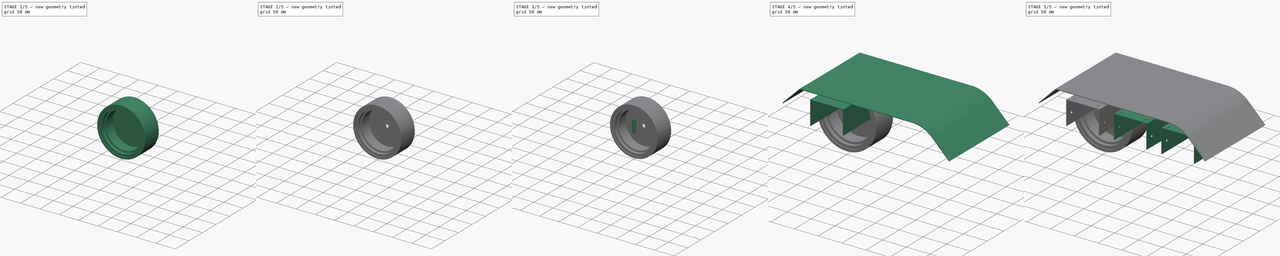
[diagram: build sequence overview — one tinted view per stage of 5, left to right]
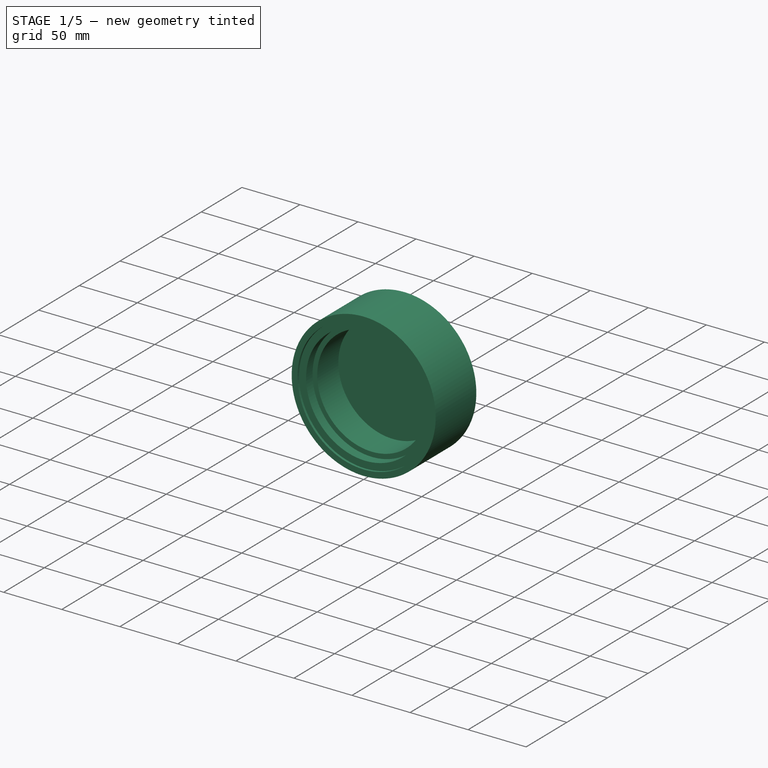
[diagram: stage 1 of 5 — iso view after this stage's code; geometry added in this stage tinted green]
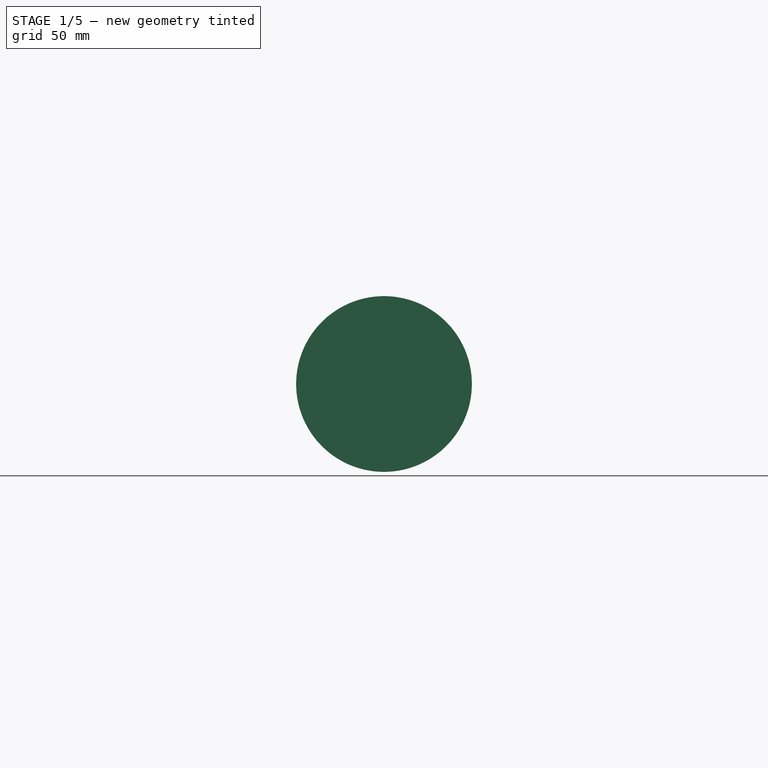
[diagram: stage 1 of 5 — front view after this stage's code; geometry added in this stage tinted green]
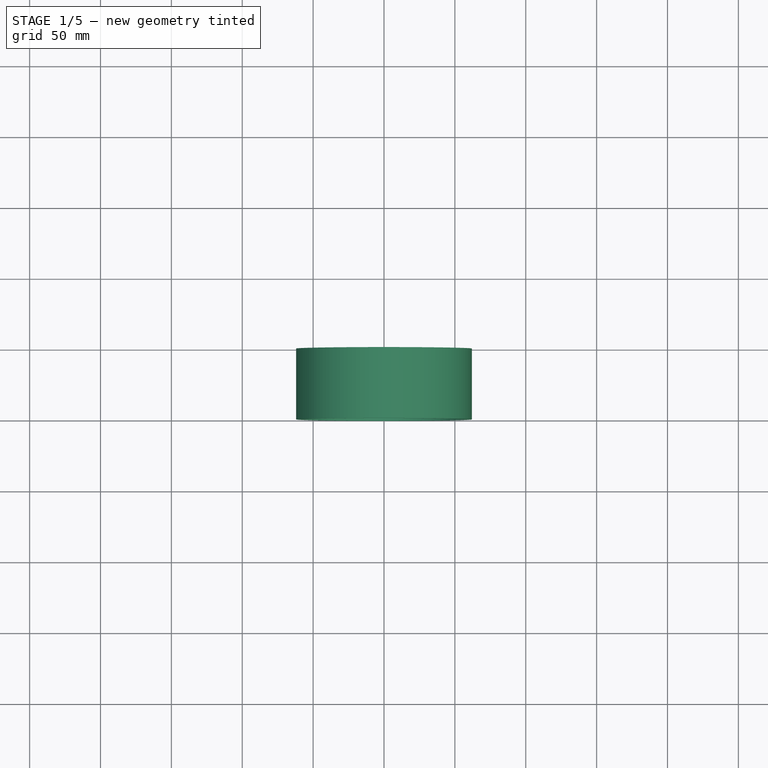
[diagram: stage 1 of 5 — top view after this stage's code; geometry added in this stage tinted green]
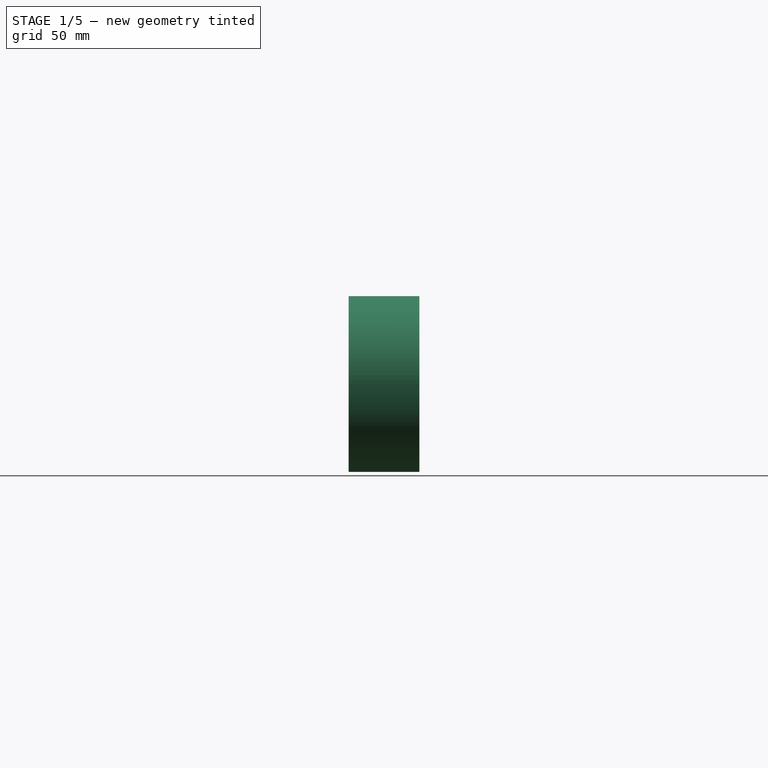
[diagram: stage 1 of 5 — right view after this stage's code; geometry added in this stage tinted green]
FCSTD DOCUMENT  (FreeCAD 0.16R6705 (Git))
Label: ubot
License: All rights reserved
LicenseURL: http://en.wikipedia.org/wiki/All_rights_reserved
objects: Sketcher::SketchObject×18, PartDesign::Pocket×12, App::DocumentObjectGroup×7, Part::Extrusion×6, Part::FeaturePython×5, Part::Fillet×1, Part::MultiFuse×1
note: 55 computed .brp shape members not serialized (recipe doc carries the construction recipe); baked Part::Feature solids carry a one-line shape summary decoded from their .brp

FEATURE [App::DocumentObjectGroup] Group006  label="Stendoff"
  Group = -> [Extrude002,Sketch011,Sketch009,Extrude003,Fusion]
FEATURE [Sketcher::SketchObject] Sketch012
  Placement = pos=(0,0,0) rot=(1,0,0;1.5708rad)
  sketch-geometry (1):
    g0: Circle CenterX=0 CenterY=0 CenterZ=0 NormalX=0 NormalY=0 NormalZ=1 Radius=62
  constraints (2):
    c: Coincident(g0,g-1)
    c: Radius(g0) = 62
FEATURE [App::DocumentObjectGroup] Group007  label="Wheel"
  Group = -> [Sketch012]
FEATURE [App::DocumentObjectGroup] Group003  label="Parts"
  Group = -> [Group001,Group006,Group,Group007]
FEATURE [Part::Extrusion] Extrude005
  Base = -> Sketch012
  Dir = (0,50,0)
  Solid = true
FEATURE [Sketcher::SketchObject] Sketch013
  Placement = pos=(0,0,0) rot=(1,0,0;1.5708rad)
  Support = -> Extrude005 [Face2]
  sketch-geometry (1):
    g0: Circle CenterX=0 CenterY=0 CenterZ=0 NormalX=0 NormalY=0 NormalZ=1 Radius=57
  constraints (2):
    c: Coincident(g0,g-1)
    c: Radius(g0) = 57
FEATURE [PartDesign::Pocket] Pocket003
  Length = 2
  Sketch = -> Sketch013
  Type = 0
FEATURE [Sketcher::SketchObject] Sketch014
  Placement = pos=(0,2,0) rot=(1,0,0;1.5708rad)
  Support = -> Pocket003 [Face5]
  sketch-geometry (1):
    g0: Circle CenterX=0 CenterY=0 CenterZ=0 NormalX=0 NormalY=0 NormalZ=1 Radius=51
  constraints (2):
    c: Coincident(g0,g-1)
    c: Radius(g0) = 51
FEATURE [PartDesign::Pocket] Pocket004
  Length = 8
  Sketch = -> Sketch014
  Type = 0
FEATURE [Sketcher::SketchObject] Sketch015
  Placement = pos=(0,10,0) rot=(1,0,0;1.5708rad)
  Support = -> Pocket004 [Face7]
  sketch-geometry (1):
    g0: Circle CenterX=0 CenterY=0 CenterZ=0 NormalX=0 NormalY=0 NormalZ=1 Radius=47
  constraints (2):
    c: Coincident(g0,g-1)
    c: Radius(g0) = 47
FEATURE [PartDesign::Pocket] Pocket005
  Length = 26
  Sketch = -> Sketch015
  Type = 0
FEATURE [Sketcher::SketchObject] Sketch016
  Placement = pos=(0,50,0) rot=(0,0.707107,0.707107;3.14159rad)
  Support = -> Pocket005 [Face3]
  sketch-geometry (1):
    g0: Circle CenterX=0 CenterY=0 CenterZ=0 NormalX=0 NormalY=0 NormalZ=1 Radius=58
  constraints (2):
    c: Coincident(g0,g-1)
    c: Radius(g0) = 58
FEATURE [PartDesign::Pocket] Pocket006
  Length = 2
  Sketch = -> Sketch016
  Type = 0
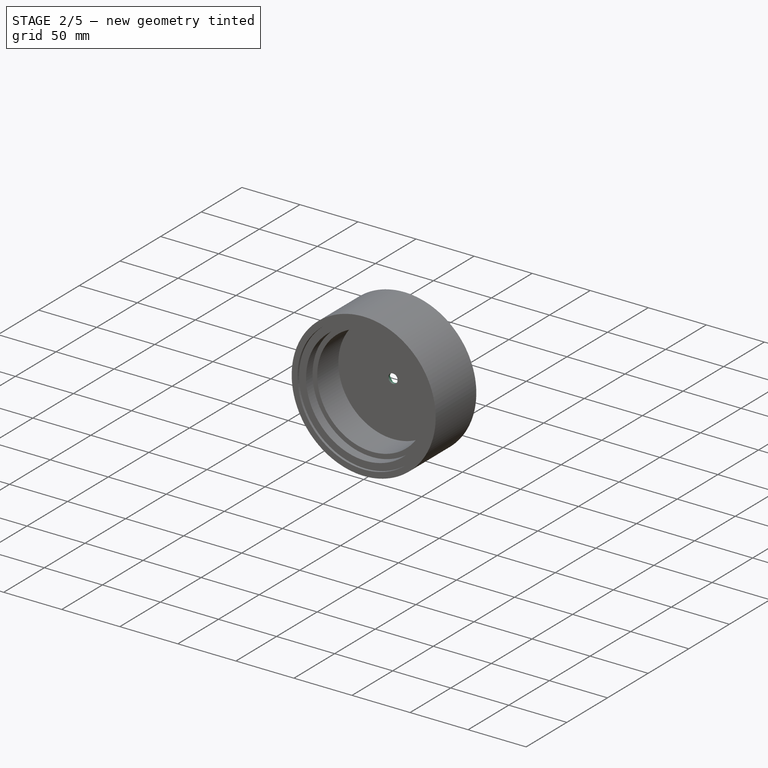
[diagram: stage 2 of 5 — iso view after this stage's code; geometry added in this stage tinted green]
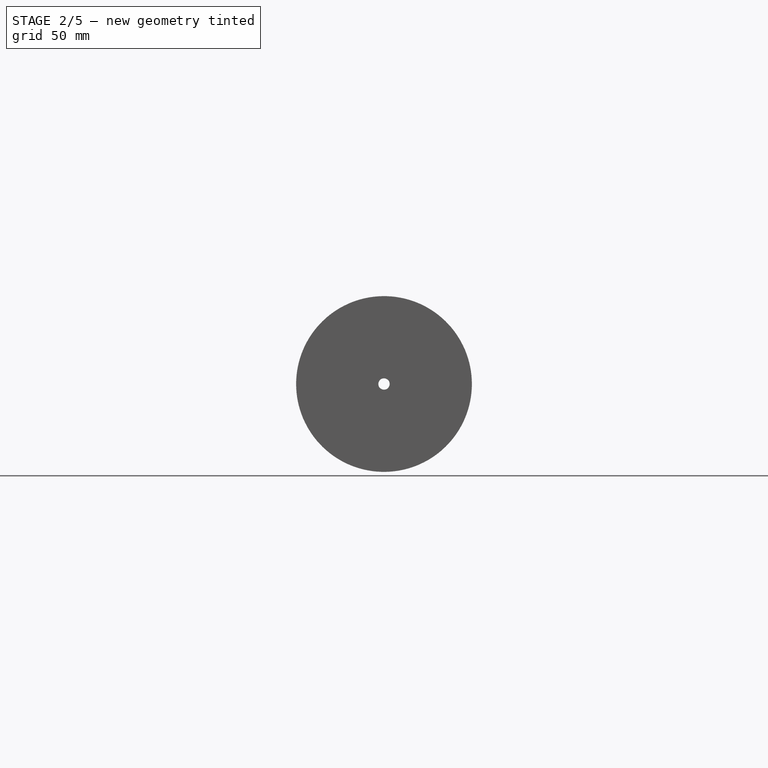
[diagram: stage 2 of 5 — front view after this stage's code; geometry added in this stage tinted green]
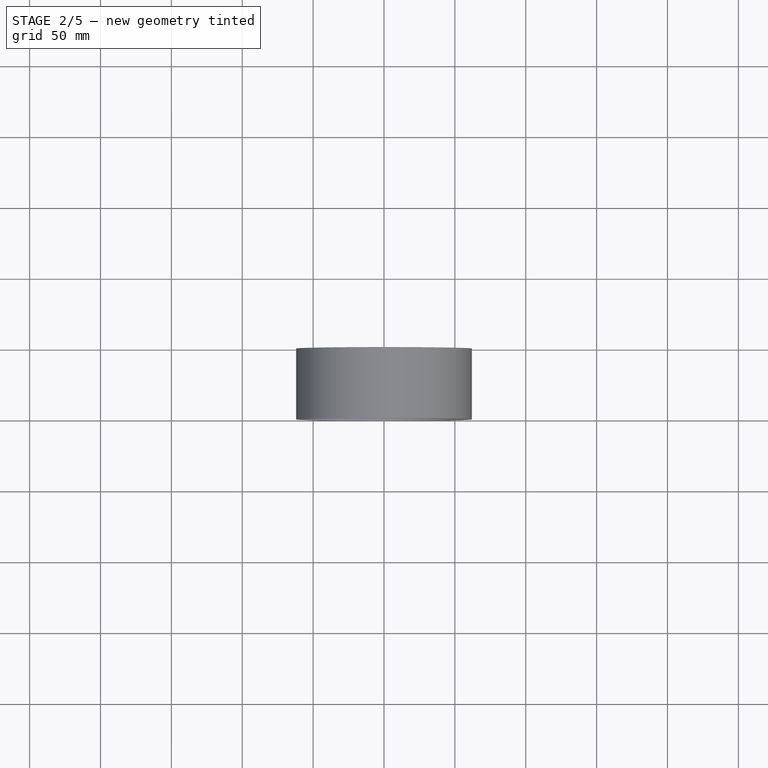
[diagram: stage 2 of 5 — top view after this stage's code; geometry added in this stage tinted green]
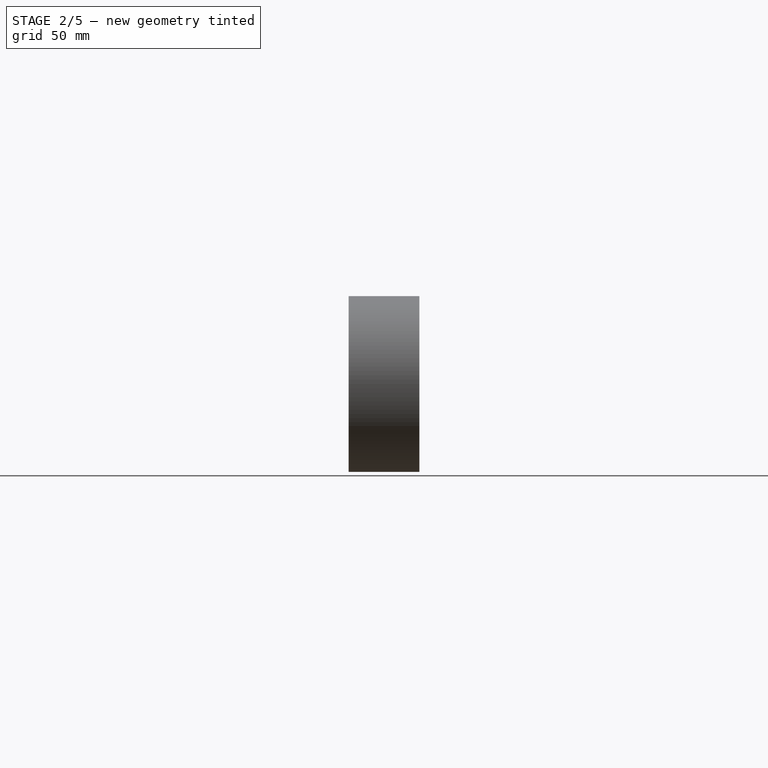
[diagram: stage 2 of 5 — right view after this stage's code; geometry added in this stage tinted green]
FEATURE [Sketcher::SketchObject] Sketch017
  Placement = pos=(0,48,0) rot=(0,0.707107,0.707107;3.14159rad)
  Support = -> Pocket006 [Face7]
  sketch-geometry (1):
    g0: Circle CenterX=0 CenterY=0 CenterZ=0 NormalX=0 NormalY=0 NormalZ=1 Radius=51
  constraints (2):
    c: Coincident(g0,g-1)
    c: Radius(g0) = 51
FEATURE [PartDesign::Pocket] Pocket007
  Length = 2
  Sketch = -> Sketch017
  Type = 0
FEATURE [Sketcher::SketchObject] Sketch019
  Placement = pos=(0,46,0) rot=(0,0.707107,0.707107;3.14159rad)
  Support = -> Pocket007 [Face11]
  sketch-geometry (29):
    g0: LineSegment [constr] StartX=0.353553 StartY=-0.353553 StartZ=0 EndX=-0.353553 EndY=-0.353553 EndZ=0
    g1: LineSegment [constr] StartX=-0.353553 StartY=-0.353553 StartZ=0 EndX=-0.353553 EndY=0.353553 EndZ=0
    g2: LineSegment [constr] StartX=-0.353553 StartY=0.353553 StartZ=0 EndX=0.353553 EndY=0.353553 EndZ=0
    g3: LineSegment [constr] StartX=0.353553 StartY=0.353553 StartZ=0 EndX=0.353553 EndY=-0.353553 EndZ=0
    g4: LineSegment [constr] StartX=0 StartY=0 StartZ=0 EndX=-0.353553 EndY=-0.353553 EndZ=0
    g5: ArcOfCircle CenterX=-0.353553 CenterY=-0.353553 CenterZ=0 NormalX=0 NormalY=0 NormalZ=1 Radius=51 StartAngle=0.0138653 EndAngle=1.55693
    g6: ArcOfCircle CenterX=0.353553 CenterY=-0.353553 CenterZ=0 NormalX=0 NormalY=0 NormalZ=1 Radius=24 StartAngle=4.71239 EndAngle=6.28319
    g7: ArcOfCircle CenterX=0.353553 CenterY=-0.353553 CenterZ=0 NormalX=0 NormalY=0 NormalZ=1 Radius=51 StartAngle=4.71239 EndAngle=6.28319
    g8: LineSegment [constr] StartX=0.353553 StartY=-0.353553 StartZ=0 EndX=24.3536 EndY=-0.353553 EndZ=0
    g9: LineSegment [constr] StartX=0.353553 StartY=-0.353553 StartZ=0 EndX=0.353553 EndY=-24.3536 EndZ=0
    g10: LineSegment StartX=24.3536 StartY=-0.353553 StartZ=0 EndX=51.3536 EndY=-0.353553 EndZ=0
    g11: LineSegment StartX=0.353553 StartY=-24.3536 StartZ=0 EndX=0.353553 EndY=-51.3536 EndZ=0
    g12: ArcOfCircle CenterX=0.353553 CenterY=0.353553 CenterZ=0 NormalX=0 NormalY=0 NormalZ=1 Radius=24 StartAngle=0 EndAngle=1.5708
    g13: LineSegment [constr] StartX=0.353553 StartY=0.353553 StartZ=0 EndX=0.353553 EndY=24.3536 EndZ=0
    g14: LineSegment StartX=0.353553 StartY=24.3536 StartZ=0 EndX=0.353553 EndY=50.6415 EndZ=0
    g15: LineSegment [constr] StartX=0.353553 StartY=0.353553 StartZ=0 EndX=24.3536 EndY=0.353553 EndZ=0
    g16: LineSegment StartX=24.3536 StartY=0.353553 StartZ=0 EndX=50.6415 EndY=0.353553 EndZ=0
    g17: ArcOfCircle CenterX=-0.353553 CenterY=-0.353553 CenterZ=0 NormalX=0 NormalY=0 NormalZ=1 Radius=24 StartAngle=3.14159 EndAngle=4.71239
    g18: ArcOfCircle CenterX=-0.353553 CenterY=-0.353553 CenterZ=0 NormalX=0 NormalY=0 NormalZ=1 Radius=51 StartAngle=3.14159 EndAngle=4.71239
    g19: ArcOfCircle CenterX=-0.353553 CenterY=0.353553 CenterZ=0 NormalX=0 NormalY=0 NormalZ=1 Radius=24 StartAngle=1.5708 EndAngle=3.14159
    g20: ArcOfCircle CenterX=-0.353553 CenterY=0.353553 CenterZ=0 NormalX=0 NormalY=0 NormalZ=1 Radius=51 StartAngle=1.5708 EndAngle=3.14159
    g21: LineSegment [constr] StartX=-0.353553 StartY=-0.353553 StartZ=0 EndX=-0.353553 EndY=-24.3536 EndZ=0
    g22: LineSegment [constr] StartX=-0.353553 StartY=-0.353553 StartZ=0 EndX=-24.3536 EndY=-0.353553 EndZ=0
    g23: LineSegment [constr] StartX=-0.353553 StartY=0.353553 StartZ=0 EndX=-24.3536 EndY=0.353553 EndZ=0
    g24: LineSegment StartX=-24.3536 StartY=-0.353553 StartZ=0 EndX=-51.3536 EndY=-0.353553 EndZ=0
    g25: LineSegment StartX=-24.3536 StartY=0.353553 StartZ=0 EndX=-51.3536 EndY=0.353553 EndZ=0
    g26: LineSegment StartX=-0.353553 StartY=-24.3536 StartZ=0 EndX=-0.353553 EndY=-51.3536 EndZ=0
    g27: LineSegment StartX=-0.353553 StartY=24.3536 StartZ=0 EndX=-0.353553 EndY=51.3536 EndZ=0
    g28: LineSegment [constr] StartX=-0.353553 StartY=0.353553 StartZ=0 EndX=-0.353553 EndY=24.3536 EndZ=0
  constraints (78):
    c: Coincident(g0,g1)
    c: Coincident(g1,g2)
    c: Coincident(g2,g3)
    c: Coincident(g3,g0)
    c: Horizontal(g2)
    c: Vertical(g3)
    c: Equal(g1,g0)
    c: Equal(g0,g2)
    c: Equal(g2,g3)
    c: Symmetric(g0,g0,g-2)
    c: Symmetric(g1,g0,g-1)
    c: Coincident(g4,g-1)
    c: Coincident(g4,g0)
    c: Distance(g4) = 0.5
    c: Coincident(g5,g0)
    c: Radius(g5) = 51
    c: Coincident(g6,g0)
    c: Coincident(g7,g0)
    c: Coincident(g8,g0)
    c: Coincident(g8,g6)
    c: Coincident(g9,g0)
    c: Coincident(g9,g6)
    c: Vertical(g9)
    c: Horizontal(g8)
    c: Radius(g6) = 24
    c: Coincident(g10,g6)
    c: Coincident(g10,g7)
    c: Horizontal(g10)
    c: Coincident(g11,g6)
    c: Coincident(g11,g7)
    c: Vertical(g11)
    c: Radius(g7) = 51
    c: Coincident(g12,g2)
    c: Radius(g12) = 24
    c: Coincident(g13,g2)
    c: Coincident(g13,g12)
    c: Vertical(g13)
    c: Coincident(g14,g12)
    c: Coincident(g14,g5)
    c: Vertical(g14)
    c: Coincident(g15,g2)
    c: Coincident(g15,g12)
    c: Coincident(g16,g12)
    c: Coincident(g16,g5)
    c: Horizontal(g16)
    c: Horizontal(g15)
    c: Coincident(g17,g0)
    c: Coincident(g18,g0)
    c: Coincident(g19,g1)
    c: Coincident(g20,g1)
    c: Radius(g17) = 24
    c: Radius(g19) = 24
    c: Coincident(g21,g0)
    c: Coincident(g21,g17)
    c: Vertical(g21)
    c: Coincident(g22,g0)
    c: Coincident(g22,g17)
    c: Horizontal(g22)
    c: Coincident(g23,g1)
    c: Coincident(g23,g19)
    c: Horizontal(g23)
    c: Coincident(g24,g17)
    c: Coincident(g24,g18)
    c: Horizontal(g24)
    c: Coincident(g25,g19)
    c: Coincident(g25,g20)
    c: Horizontal(g25)
    c: Coincident(g26,g17)
    c: Coincident(g26,g18)
    c: Vertical(g26)
    c: Coincident(g27,g19)
    c: Coincident(g27,g20)
    c: Vertical(g27)
    c: Radius(g20) = 51
    c: Coincident(g28,g1)
    c: Coincident(g28,g19)
    c: Vertical(g28)
    c: Radius(g18) = 51
FEATURE [PartDesign::Pocket] Pocket008
  Length = 9
  Sketch = -> Sketch019
  Type = 0
FEATURE [Sketcher::SketchObject] Sketch020
  ExternalGeometry = -> [Pocket008]
  Placement = pos=(0,46,0) rot=(0,0.707107,0.707107;3.14159rad)
  Support = -> Pocket008 [Face11]
  sketch-geometry (28):
    g0: LineSegment StartX=-24.3536 StartY=0.353553 StartZ=0 EndX=-17.3535 EndY=0.353553 EndZ=0
    g1: LineSegment StartX=-0.353553 StartY=17.3536 StartZ=0 EndX=-0.353553 EndY=24.3536 EndZ=0
    g2: LineSegment StartX=-0.353553 StartY=24.3536 StartZ=0 EndX=-24.3536 EndY=24.3536 EndZ=0
    g3: LineSegment StartX=-24.3536 StartY=24.3536 StartZ=0 EndX=-24.3536 EndY=0.353553 EndZ=0
    g4: LineSegment StartX=24.3536 StartY=0.353553 StartZ=0 EndX=17.3536 EndY=0.353553 EndZ=0
    g5: LineSegment StartX=0.353553 StartY=17.3536 StartZ=0 EndX=0.353553 EndY=24.3536 EndZ=0
    g6: LineSegment StartX=0.353553 StartY=24.3536 StartZ=0 EndX=24.3536 EndY=24.3536 EndZ=0
    g7: LineSegment StartX=24.3536 StartY=24.3536 StartZ=0 EndX=24.3536 EndY=0.353553 EndZ=0
    g8: LineSegment StartX=-0.353553 StartY=-24.3536 StartZ=0 EndX=-24.3536 EndY=-24.3536 EndZ=0
    g9: LineSegment StartX=-24.3536 StartY=-24.3536 StartZ=0 EndX=-24.3536 EndY=-0.353553 EndZ=0
    g10: LineSegment StartX=-24.3536 StartY=-0.353553 StartZ=0 EndX=-17.3535 EndY=-0.353553 EndZ=0
    g11: LineSegment StartX=-0.353553 StartY=-17.3536 StartZ=0 EndX=-0.353553 EndY=-24.3536 EndZ=0
    g12: LineSegment StartX=0.353553 StartY=-24.3536 StartZ=0 EndX=24.3536 EndY=-24.3536 EndZ=0
    g13: LineSegment StartX=24.3536 StartY=-24.3536 StartZ=0 EndX=24.3536 EndY=-0.353553 EndZ=0
    g14: LineSegment StartX=24.3536 StartY=-0.353553 StartZ=0 EndX=17.3536 EndY=-0.353553 EndZ=0
    g15: LineSegment StartX=0.353553 StartY=-17.3536 StartZ=0 EndX=0.353553 EndY=-24.3536 EndZ=0
    g16: ArcOfCircle CenterX=-0.35351 CenterY=0.353553 CenterZ=0 NormalX=0 NormalY=0 NormalZ=1 Radius=17 StartAngle=1.5708 EndAngle=3.14159
    g17: ArcOfCircle CenterX=0.353553 CenterY=0.353553 CenterZ=0 NormalX=0 NormalY=0 NormalZ=1 Radius=17 StartAngle=0 EndAngle=1.5708
    g18: ArcOfCircle CenterX=0.353553 CenterY=-0.353553 CenterZ=0 NormalX=0 NormalY=0 NormalZ=1 Radius=17 StartAngle=4.71239 EndAngle=6.28319
    g19: ArcOfCircle CenterX=-0.35351 CenterY=-0.353553 CenterZ=0 NormalX=0 NormalY=0 NormalZ=1 Radius=17 StartAngle=3.14159 EndAngle=4.71239
    g20: LineSegment [constr] StartX=-17.3535 StartY=0.353553 StartZ=0 EndX=-0.353553 EndY=17.3536 EndZ=0
    g21: LineSegment [constr] StartX=0.353553 StartY=17.3536 StartZ=0 EndX=17.3536 EndY=0.353553 EndZ=0
    g22: LineSegment [constr] StartX=17.3536 StartY=-0.353553 StartZ=0 EndX=0.353553 EndY=-17.3536 EndZ=0
    g23: LineSegment [constr] StartX=-0.353553 StartY=-17.3536 StartZ=0 EndX=-17.3535 EndY=-0.353553 EndZ=0
    g24: LineSegment [constr] StartX=-0.353553 StartY=17.3536 StartZ=0 EndX=0.353553 EndY=17.3536 EndZ=0
    g25: LineSegment [constr] StartX=-0.353553 StartY=-17.3536 StartZ=0 EndX=0.353553 EndY=-17.3536 EndZ=0
    g26: LineSegment [constr] StartX=17.3536 StartY=0.353553 StartZ=0 EndX=17.3536 EndY=-0.353553 EndZ=0
    g27: LineSegment [constr] StartX=-17.3535 StartY=-0.353553 StartZ=0 EndX=-17.3535 EndY=0.353553 EndZ=0
  constraints (71):
    c: Coincident(g1,g2)
    c: Coincident(g2,g3)
    c: Coincident(g3,g0)
    c: Horizontal(g0)
    c: Horizontal(g2)
    c: Vertical(g1)
    c: Vertical(g3)
    c: Coincident(g0,g-3)
    c: Coincident(g1,g-10)
    c: Coincident(g5,g6)
    c: Coincident(g6,g7)
    c: Coincident(g7,g4)
    c: Horizontal(g4)
    c: Horizontal(g6)
    c: Vertical(g5)
    c: Vertical(g7)
    c: Coincident(g4,g-8)
    c: Coincident(g5,g-9)
    c: Coincident(g8,g9)
    c: Coincident(g9,g10)
    c: Coincident(g11,g8)
    c: Horizontal(g8)
    c: Horizontal(g10)
    c: Vertical(g9)
    c: Vertical(g11)
    c: Coincident(g8,g-5)
    c: Coincident(g9,g-4)
    c: Coincident(g12,g13)
    c: Coincident(g13,g14)
    c: Coincident(g15,g12)
    c: Horizontal(g12)
    c: Horizontal(g14)
    c: Vertical(g13)
    c: Vertical(g15)
    c: Coincident(g12,g-6)
    c: Coincident(g13,g-7)
    c: PointOnObject(g16,g1)
    c: PointOnObject(g21,g5)
    c: PointOnObject(g21,g4)
    c: PointOnObject(g22,g15)
    c: PointOnObject(g22,g14)
    c: PointOnObject(g23,g11)
    c: PointOnObject(g19,g10)
    c: Radius(g19) = 17
    c: Radius(g18) = 17
    c: Radius(g17) = 17
    c: Radius(g16) = 17
    c: Coincident(g0,g16)
    c: Coincident(g20,g0)
    c: Coincident(g20,g16)
    c: Coincident(g23,g19)
    c: Distance(g20) = 24.0416
    c: Coincident(g24,g16)
    c: Coincident(g24,g21)
    c: Horizontal(g24)
    c: Coincident(g25,g23)
    c: Coincident(g25,g22)
    c: Horizontal(g25)
    c: Coincident(g26,g21)
    c: Coincident(g26,g22)
    c: Vertical(g26)
    c: Coincident(g27,g19)
    c: Coincident(g27,g0)
    c: Vertical(g27)
    c: PointOnObject(g10,g23)
    c: Coincident(g11,g19)
    c: Coincident(g15,g18)
    c: Coincident(g14,g18)
    c: Coincident(g4,g17)
    c: Coincident(g5,g17)
    c: PointOnObject(g1,g24)
FEATURE [PartDesign::Pocket] Pocket009
  Length = 5
  Sketch = -> Sketch020
  Type = 0
FEATURE [Sketcher::SketchObject] Sketch021
  Placement = pos=(0,46,0) rot=(0,0.707107,0.707107;3.14159rad)
  Support = -> Pocket009 [Face11]
  sketch-geometry (7):
    g0: LineSegment StartX=6 StartY=-10.3923 StartZ=0 EndX=12 EndY=0 EndZ=0
    g1: LineSegment StartX=12 StartY=0 StartZ=0 EndX=6 EndY=10.3923 EndZ=0
    g2: LineSegment StartX=6 StartY=10.3923 StartZ=0 EndX=-6 EndY=10.3923 EndZ=0
    g3: LineSegment StartX=-6 StartY=10.3923 StartZ=0 EndX=-12 EndY=0 EndZ=0
    g4: LineSegment StartX=-12 StartY=0 StartZ=0 EndX=-6 EndY=-10.3923 EndZ=0
    g5: LineSegment StartX=-6 StartY=-10.3923 StartZ=0 EndX=6 EndY=-10.3923 EndZ=0
    g6: Circle [constr] CenterX=0 CenterY=0 CenterZ=0 NormalX=0 NormalY=0 NormalZ=1 Radius=12
  constraints (16):
    c: Coincident(g0,g1)
    c: Coincident(g1,g2)
    c: Coincident(g2,g3)
    c: Coincident(g3,g4)
    c: Coincident(g4,g5)
    c: Coincident(g5,g0)
    c: Equal(g0, g1-g5) x5
    c: PointOnObject(g0,g6)
    c: PointOnObject(g1,g6)
    c: PointOnObject(g2,g6)
    c: PointOnObject(g3,g6)
    c: PointOnObject(g4,g6)
    c: PointOnObject(g5,g6)
    c: Coincident(g6,g-1)
    c: Horizontal(g5)
    c: Radius(g6) = 12
FEATURE [PartDesign::Pocket] Pocket010
  Length = 8
  Sketch = -> Sketch021
  Type = 0
FEATURE [Sketcher::SketchObject] Sketch022
  Placement = pos=(0,38,0) rot=(0,0.707107,0.707107;3.14159rad)
  Support = -> Pocket010 [Face56]
  sketch-geometry (1):
    g0: Circle CenterX=0 CenterY=0 CenterZ=0 NormalX=0 NormalY=0 NormalZ=1 Radius=4
  constraints (2):
    c: Coincident(g0,g-1)
    c: Radius(g0) = 4
FEATURE [PartDesign::Pocket] Pocket011
  Length = 5
  Sketch = -> Sketch022
  Type = 1
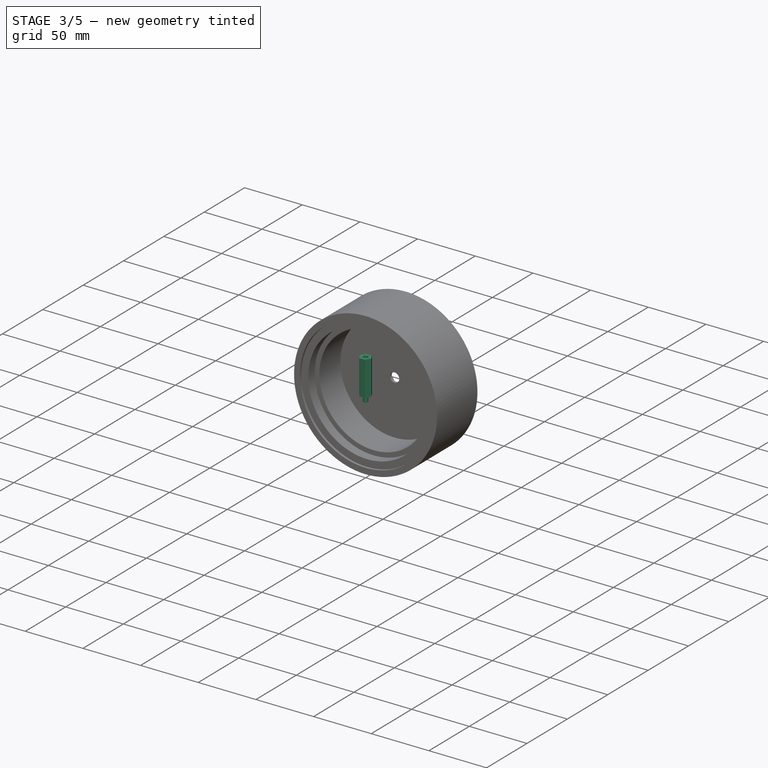
[diagram: stage 3 of 5 — iso view after this stage's code; geometry added in this stage tinted green]
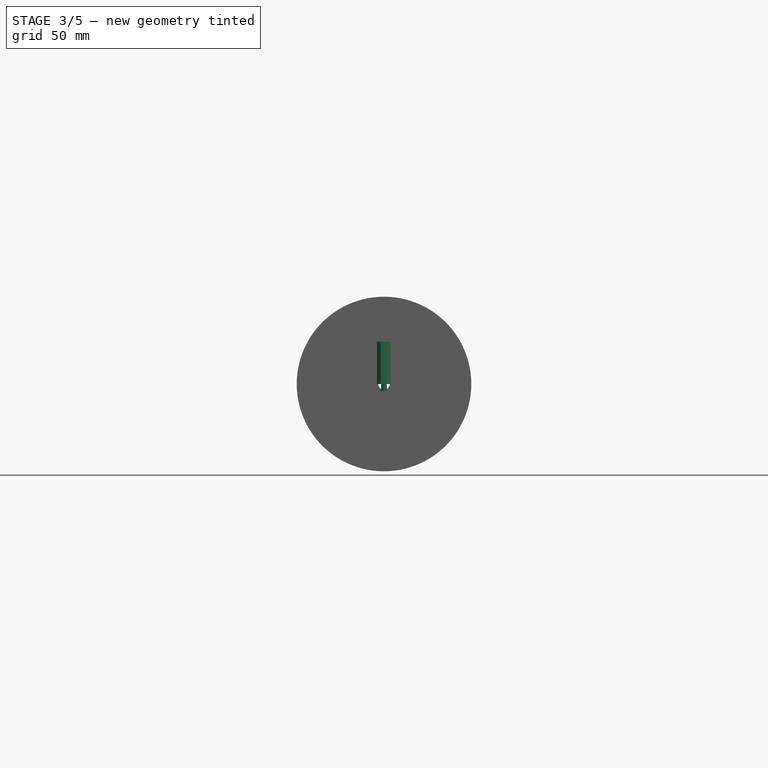
[diagram: stage 3 of 5 — front view after this stage's code; geometry added in this stage tinted green]
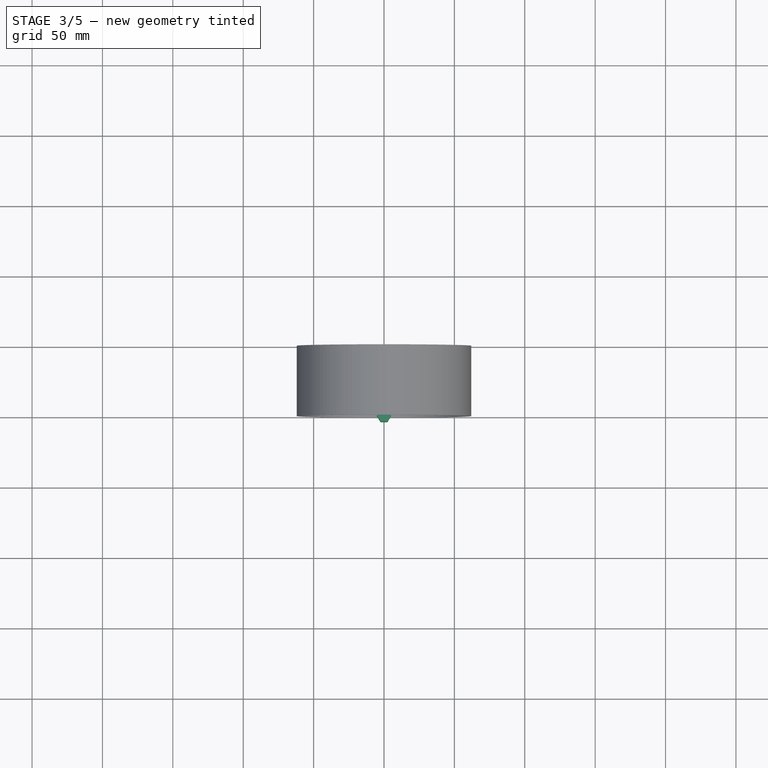
[diagram: stage 3 of 5 — top view after this stage's code; geometry added in this stage tinted green]
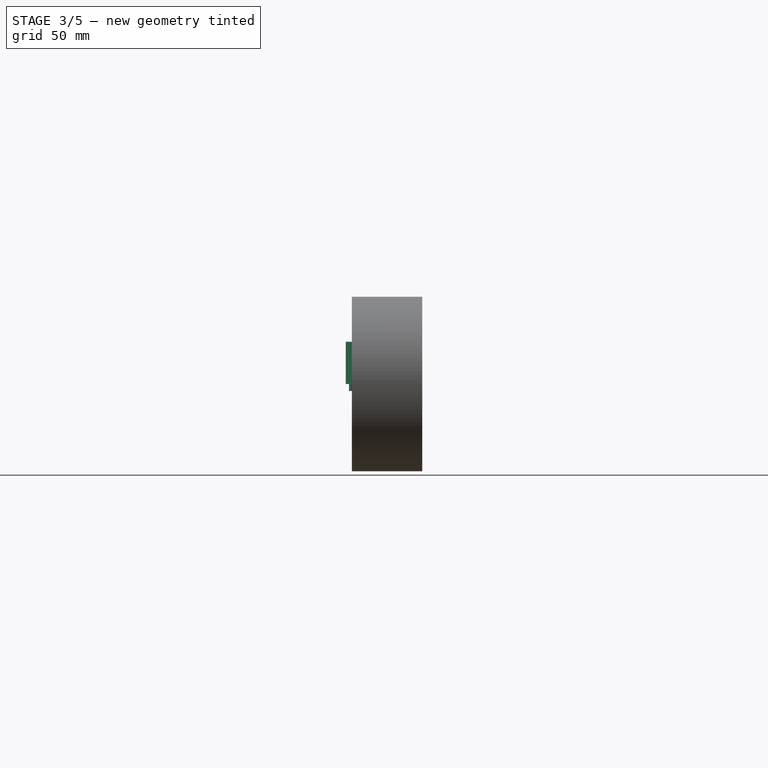
[diagram: stage 3 of 5 — right view after this stage's code; geometry added in this stage tinted green]
FEATURE [App::DocumentObjectGroup] Group  label="Cover"
  Group = -> [Bend001,Bend]
FEATURE [Sketcher::SketchObject] Sketch008
  sketch-geometry (7):
    g0: LineSegment StartX=5 StartY=0 StartZ=0 EndX=2.5 EndY=4.33013 EndZ=0
    g1: LineSegment StartX=2.5 StartY=4.33013 StartZ=0 EndX=-2.5 EndY=4.33013 EndZ=0
    g2: LineSegment StartX=-2.5 StartY=4.33013 StartZ=0 EndX=-5 EndY=0 EndZ=0
    g3: LineSegment StartX=-5 StartY=0 StartZ=0 EndX=-2.5 EndY=-4.33013 EndZ=0
    g4: LineSegment StartX=-2.5 StartY=-4.33013 StartZ=0 EndX=2.5 EndY=-4.33013 EndZ=0
    g5: LineSegment StartX=2.5 StartY=-4.33013 StartZ=0 EndX=5 EndY=0 EndZ=0
    g6: Circle [constr] CenterX=0 CenterY=0 CenterZ=0 NormalX=0 NormalY=0 NormalZ=1 Radius=5
  constraints (17):
    c: Coincident(g0,g1)
    c: Coincident(g1,g2)
    c: Coincident(g2,g3)
    c: Coincident(g3,g4)
    c: Coincident(g4,g5)
    c: Coincident(g5,g0)
    c: Equal(g0, g1-g5) x5
    c: PointOnObject(g0,g6)
    c: PointOnObject(g1,g6)
    c: PointOnObject(g2,g6)
    c: PointOnObject(g3,g6)
    c: PointOnObject(g4,g6)
    c: PointOnObject(g5,g6)
    c: Coincident(g3,g-1)
    c: Symmetric(g0,g1,g-2)
    c: DistanceX(g2,g0) = 10
    c: Symmetric(g1,g3,g-1)
FEATURE [Part::Extrusion] Extrude002
  Base = -> Sketch008
  Dir = (0,0,30)
  Solid = true
FEATURE [Sketcher::SketchObject] Sketch009
  Placement = pos=(0,0,0) rot=(1,0,0;3.14159rad)
  Support = -> Extrude002 [Face7]
  sketch-geometry (1):
    g0: Circle CenterX=0 CenterY=0 CenterZ=0 NormalX=0 NormalY=0 NormalZ=1 Radius=2
  constraints (2):
    c: Coincident(g0,g-1)
    c: Radius(g0) = 2
FEATURE [Sketcher::SketchObject] Sketch010
  Placement = pos=(0,0,30) rot=(0,0,1;0rad)
  Support = -> Extrude002 [Face8]
  sketch-geometry (1):
    g0: Circle CenterX=0 CenterY=0 CenterZ=0 NormalX=0 NormalY=0 NormalZ=1 Radius=2
  constraints (2):
    c: Coincident(g0,g-1)
    c: Radius(g0) = 2
FEATURE [PartDesign::Pocket] Pocket002
  Length = 15
  Sketch = -> Sketch010
  Type = 0
FEATURE [Sketcher::SketchObject] Sketch011
  Placement = pos=(0,0,0) rot=(1,0,0;3.14159rad)
  Support = -> Pocket002 [Face4]
  sketch-geometry (1):
    g0: Circle CenterX=0 CenterY=0 CenterZ=0 NormalX=0 NormalY=0 NormalZ=1 Radius=2
  constraints (2):
    c: Coincident(g0,g-1)
    c: Radius(g0) = 2
FEATURE [Part::Extrusion] Extrude003
  Base = -> Sketch011
  Dir = (0,0,-5)
  Solid = true
FEATURE [Part::Extrusion] Extrude004
  Base = -> Sketch011
  Dir = (0,0,-5)
  Solid = true
FEATURE [Part::MultiFuse] Fusion  label="StendoffModel"
  Shapes = -> [Extrude004,Pocket002]
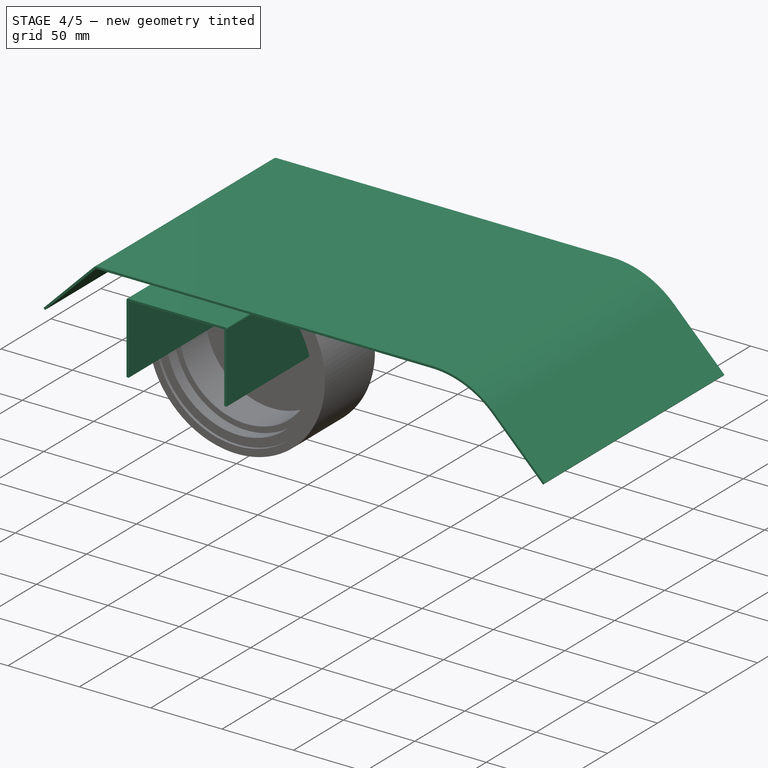
[diagram: stage 4 of 5 — iso view after this stage's code; geometry added in this stage tinted green]
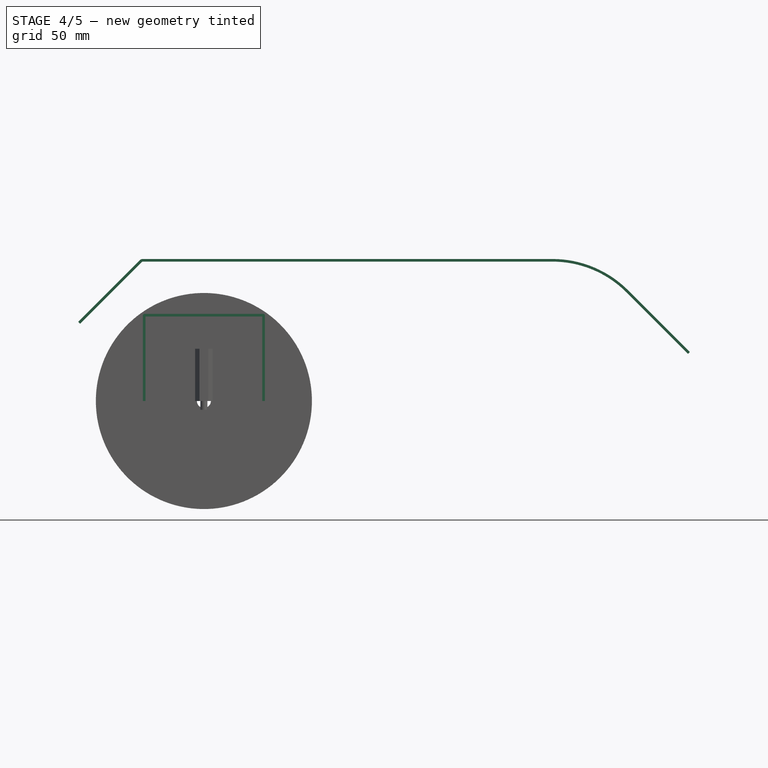
[diagram: stage 4 of 5 — front view after this stage's code; geometry added in this stage tinted green]
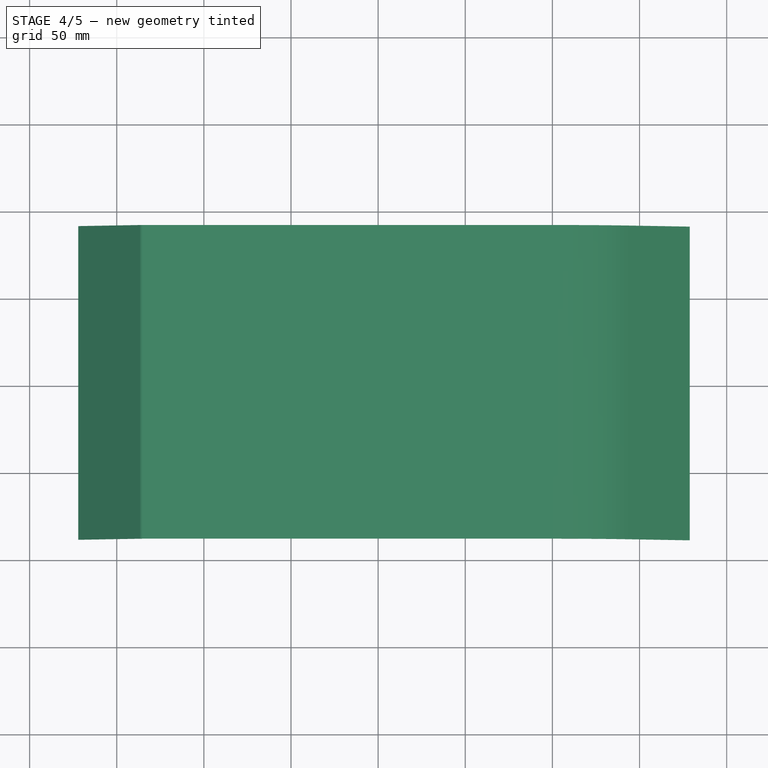
[diagram: stage 4 of 5 — top view after this stage's code; geometry added in this stage tinted green]
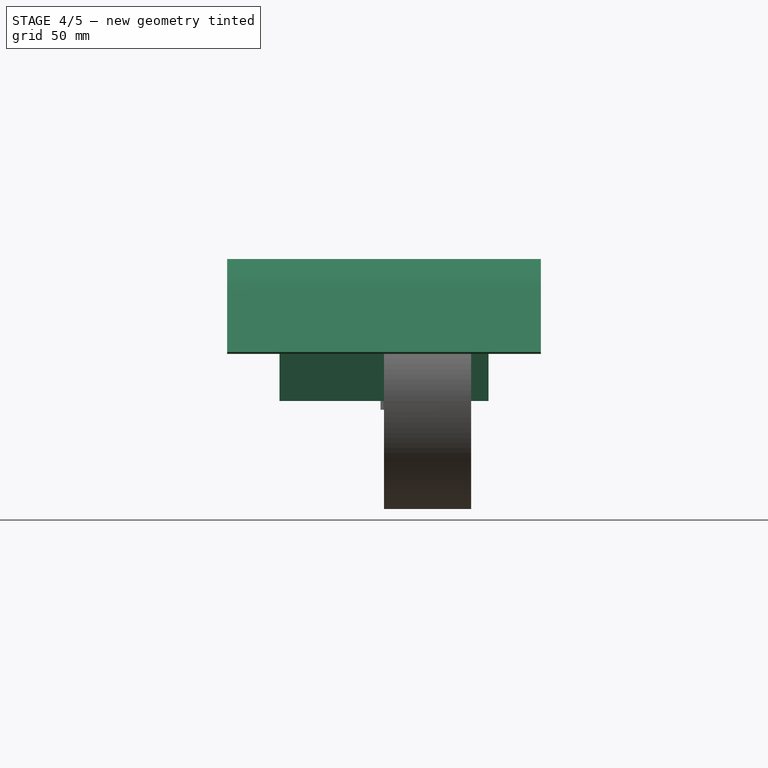
[diagram: stage 4 of 5 — right view after this stage's code; geometry added in this stage tinted green]
FEATURE [Sketcher::SketchObject] Sketch
  Placement = pos=(0,0,0) rot=(0.57735,0.57735,0.57735;2.0944rad)
  sketch-geometry (4):
    g0: LineSegment StartX=-90 StartY=81.5 StartZ=0 EndX=90 EndY=81.5 EndZ=0
    g1: LineSegment StartX=-90 StartY=80 StartZ=0 EndX=90 EndY=80 EndZ=0
    g2: LineSegment StartX=90 StartY=80 StartZ=0 EndX=90 EndY=81.5 EndZ=0
    g3: LineSegment StartX=-90 StartY=81.5 StartZ=0 EndX=-90 EndY=80 EndZ=0
  constraints (13):
    c: Horizontal(g0)
    c: Horizontal(g1)
    c: Coincident(g1,g2)
    c: Coincident(g2,g0)
    c: Vertical(g2)
    c: DistanceY(g2) = 1.5
    c: Coincident(g3,g0)
    c: Coincident(g3,g1)
    c: Vertical(g3)
    c: Equal(g0,g1)
    c: DistanceX(g0) = 180
    c: Symmetric(g1,g1,g-2)
    c: DistanceY(g1) = 80
FEATURE [Part::Extrusion] Extrude
  Base = -> Sketch
  Dir = (235,0,0)
  Placement = pos=(-35,0,0) rot=(0,0,1;0rad)
  Solid = true
FEATURE [Part::FeaturePython] Bend001  # WARN: FeaturePython — macro-defined, semantics opaque (R4)
  angle = 45
  baseObject = -> Extrude [Face5]
  gap1 = 0
  gap2 = 0
  invert = true
  length = 50
  radius = 1
  reliefd = 1
  reliefw = 0.5
FEATURE [Sketcher::SketchObject] Sketch004  label="pmodel_sketch"
  Placement = pos=(0,0,0) rot=(1,0,0;1.5708rad)
  sketch-geometry (9):
    g0: LineSegment StartX=-35 StartY=0 StartZ=0 EndX=-35 EndY=50 EndZ=0
    g1: LineSegment StartX=-35 StartY=50 StartZ=0 EndX=35 EndY=50 EndZ=0
    g2: LineSegment StartX=35 StartY=50 StartZ=0 EndX=35 EndY=0 EndZ=0
    g3: LineSegment StartX=35 StartY=0 StartZ=0 EndX=33.5 EndY=0 EndZ=0
    g4: LineSegment StartX=33.5 StartY=0 StartZ=0 EndX=33.5 EndY=48.5 EndZ=0
    g5: LineSegment StartX=33.5 StartY=48.5 StartZ=0 EndX=-33.5 EndY=48.5 EndZ=0
    g6: LineSegment StartX=-33.5 StartY=48.5 StartZ=0 EndX=-33.5 EndY=0 EndZ=0
    g7: LineSegment StartX=-33.5 StartY=0 StartZ=0 EndX=-35 EndY=0 EndZ=0
    g8: LineSegment [constr] StartX=10 StartY=50 StartZ=0 EndX=10 EndY=48.5 EndZ=0
  constraints (28):
    c: Vertical(g0)
    c: Coincident(g0,g1)
    c: Horizontal(g1)
    c: Coincident(g1,g2)
    c: Vertical(g2)
    c: Coincident(g2,g3)
    c: Horizontal(g3)
    c: Coincident(g3,g4)
    c: Vertical(g4)
    c: Coincident(g4,g5)
    c: Horizontal(g5)
    c: Coincident(g5,g6)
    c: Vertical(g6)
    c: Coincident(g6,g7)
    c: Coincident(g7,g0)
    c: Symmetric(g0,g1,g-2)
    c: DistanceX(g1) = 70
    c: Horizontal(g7)
    c: Symmetric(g5,g4,g-2)
    c: DistanceX(g5) = -67
    c: PointOnObject(g8,g1)
    c: PointOnObject(g8,g5)
    c: Vertical(g8)
    c: DistanceY(g8) = -1.5
    c: Equal(g0,g2)
    c: DistanceY(g0) = 50
    c: DistanceY(g6) = 0
    c: DistanceX(g8) = 10
FEATURE [Part::Extrusion] Extrude001  label="pmodel"
  Base = -> Sketch004
  Dir = (0,120,0)
  Placement = pos=(0,-60,0) rot=(0,0,1;0rad)
  Solid = true
FEATURE [Part::Fillet] Fillet
  Base = -> Extrude001
  Edges = 2 edges r=1: [Edge2,Edge5]
FEATURE [App::DocumentObjectGroup] Group001  label="WheelFrame"
  Group = -> [Sketch004,Extrude001,Fillet,Pocket,Pocket001]
FEATURE [Part::FeaturePython] Bend  label="CoverModel"  # WARN: FeaturePython — macro-defined, semantics opaque (R4)
  angle = 45
  baseObject = -> Bend001 [Face14]
  gap1 = 0
  gap2 = 0
  invert = true
  length = 50
  radius = 60
  reliefd = 1
  reliefw = 0.5
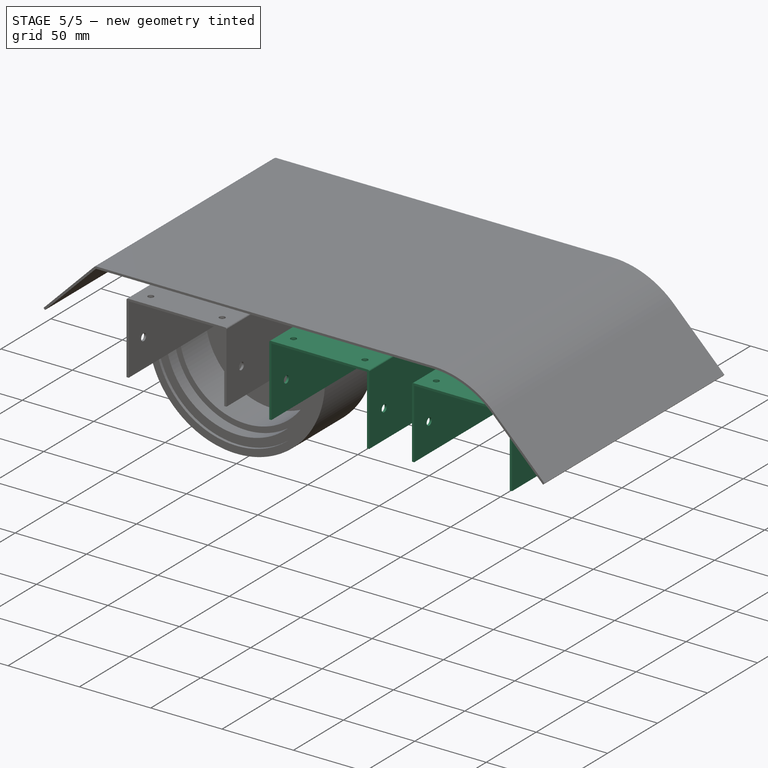
[diagram: stage 5 of 5 — iso view after this stage's code; geometry added in this stage tinted green]
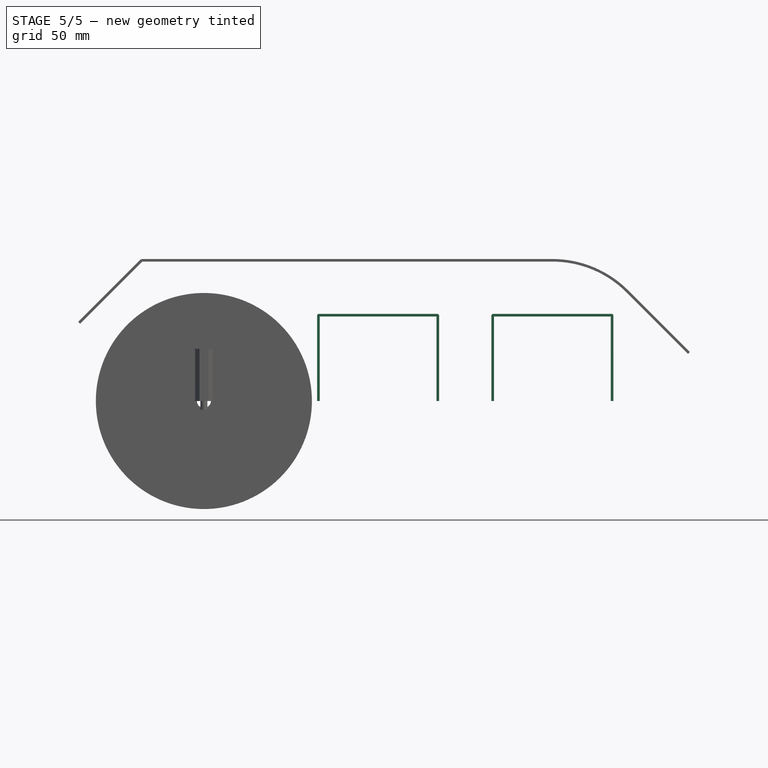
[diagram: stage 5 of 5 — front view after this stage's code; geometry added in this stage tinted green]
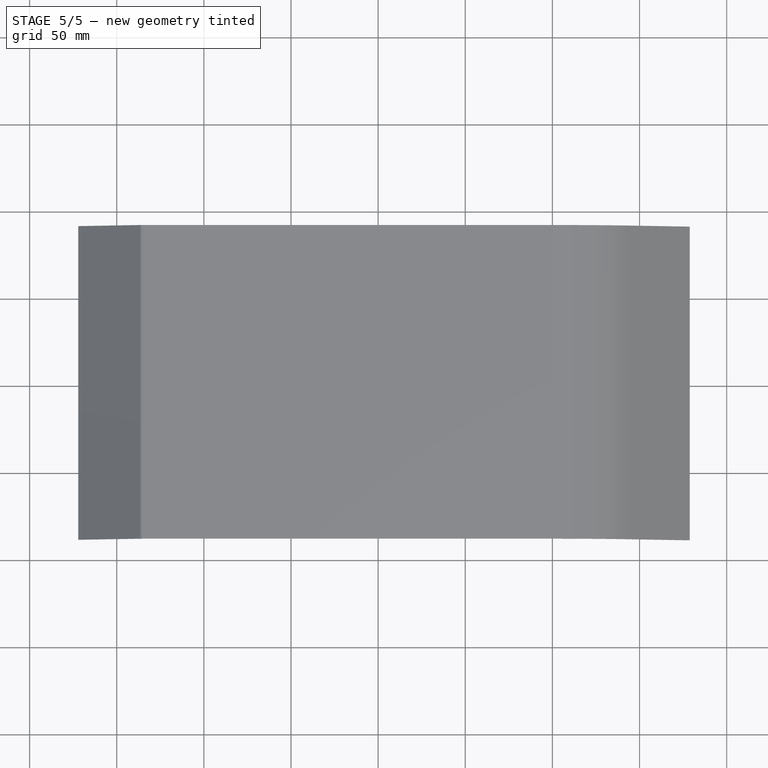
[diagram: stage 5 of 5 — top view after this stage's code; geometry added in this stage tinted green]
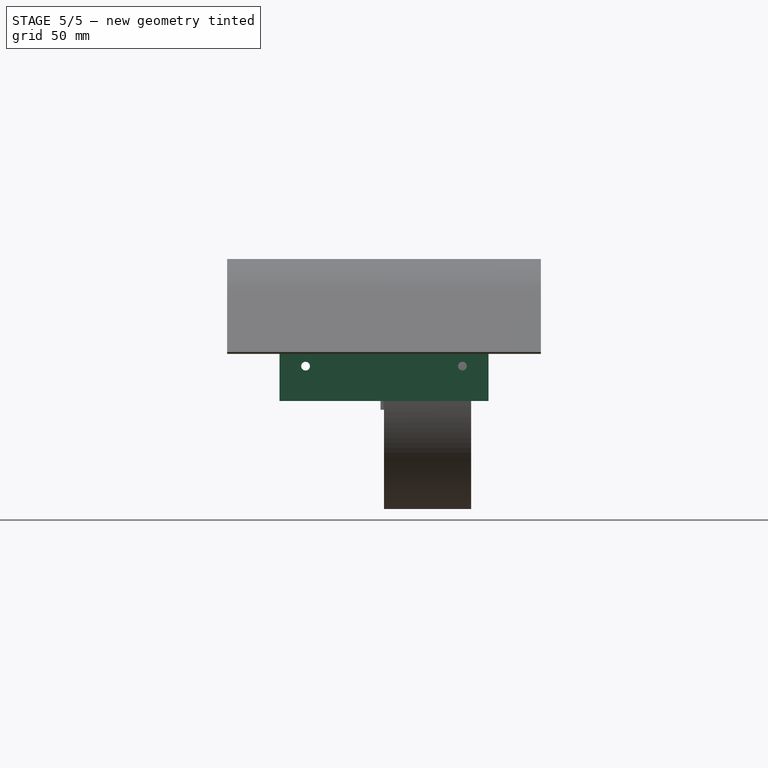
[diagram: stage 5 of 5 — right view after this stage's code; geometry added in this stage tinted green]
FEATURE [Sketcher::SketchObject] Sketch005  label="wheel_holes"
  Placement = pos=(35,0,0) rot=(0.57735,0.57735,0.57735;2.0944rad)
  Support = -> Fillet [Face10]
  sketch-geometry (2):
    g0: Circle CenterX=-45 CenterY=20 CenterZ=0 NormalX=0 NormalY=0 NormalZ=1 Radius=2.5
    g1: Circle CenterX=45 CenterY=20 CenterZ=0 NormalX=0 NormalY=0 NormalZ=1 Radius=2.5
  constraints (6):
    c: Radius(g0) = 2.5
    c: Equal(g0,g1)
    c: DistanceY(g0) = 20
    c: DistanceX(g0,g1) = 90
    c: DistanceY(g-1,g1) = 20
    c: DistanceX(g-1,g0) = -45
FEATURE [PartDesign::Pocket] Pocket  label="WheelHolesPocket"
  Length = 71
  Sketch = -> Sketch005
  Type = 0
FEATURE [Part::FeaturePython] Clone  label="WheelFrame2"  # WARN: FeaturePython — macro-defined, semantics opaque (R4)
  Placement = pos=(100,0,0) rot=(0,0,1;0rad)
  Scale = (1,1,1)
FEATURE [Part::FeaturePython] Clone001  label="WheelFrame3"  # WARN: FeaturePython — macro-defined, semantics opaque (R4)
  Placement = pos=(200,0,0) rot=(0,0,1;0rad)
  Scale = (1,1,1)
FEATURE [Part::FeaturePython] Clone002  label="WheelFrame1"  # WARN: FeaturePython — macro-defined, semantics opaque (R4)
  Scale = (1,1,1)
FEATURE [App::DocumentObjectGroup] Group004  label="WheelFrames"
  Group = -> [Clone002,Clone,Clone001]
FEATURE [App::DocumentObjectGroup] Group002  label="Assembly"
  Group = -> [Group004]
FEATURE [Sketcher::SketchObject] Sketch007
  Placement = pos=(0,0,50) rot=(0,0,1;0rad)
  Support = -> Pocket [Face8]
  sketch-geometry (5):
    g0: Circle CenterX=0 CenterY=0 CenterZ=0 NormalX=0 NormalY=0 NormalZ=1 Radius=8
    g1: Circle CenterX=-25 CenterY=50 CenterZ=0 NormalX=0 NormalY=0 NormalZ=1 Radius=2
    g2: Circle CenterX=25 CenterY=50 CenterZ=0 NormalX=0 NormalY=0 NormalZ=1 Radius=2
    g3: Circle CenterX=-25 CenterY=-50 CenterZ=0 NormalX=0 NormalY=0 NormalZ=1 Radius=2
    g4: Circle CenterX=25 CenterY=-50 CenterZ=0 NormalX=0 NormalY=0 NormalZ=1 Radius=2
  constraints (14):
    c: Coincident(g0,g-1)
    c: Radius(g0) = 8
    c: Equal(g1,g2)
    c: Equal(g2,g3)
    c: Equal(g3,g4)
    c: Radius(g1) = 2
    c: DistanceX(g2) = 25
    c: DistanceY(g2) = 50
    c: DistanceX(g1) = -25
    c: DistanceY(g1) = 50
    c: DistanceX(g4) = 25
    c: DistanceY(g4) = -50
    c: DistanceX(g3) = -25
    c: DistanceY(g3) = -50
FEATURE [PartDesign::Pocket] Pocket001
  Length = 5
  Sketch = -> Sketch007
  Type = 0
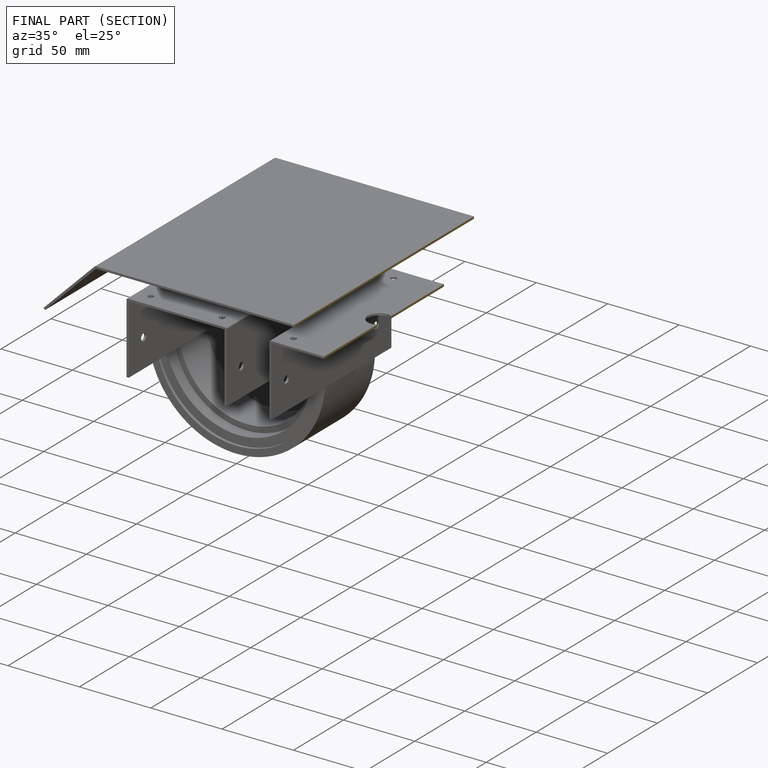
[diagram: finished part — half-section view (interior)]
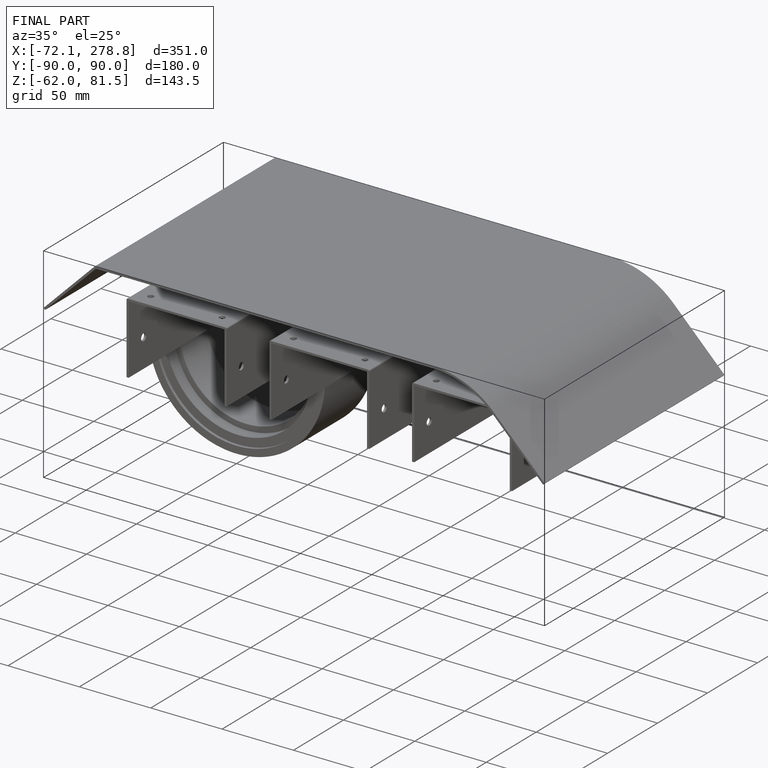
[diagram: finished part — iso view with bounding-box wireframe]
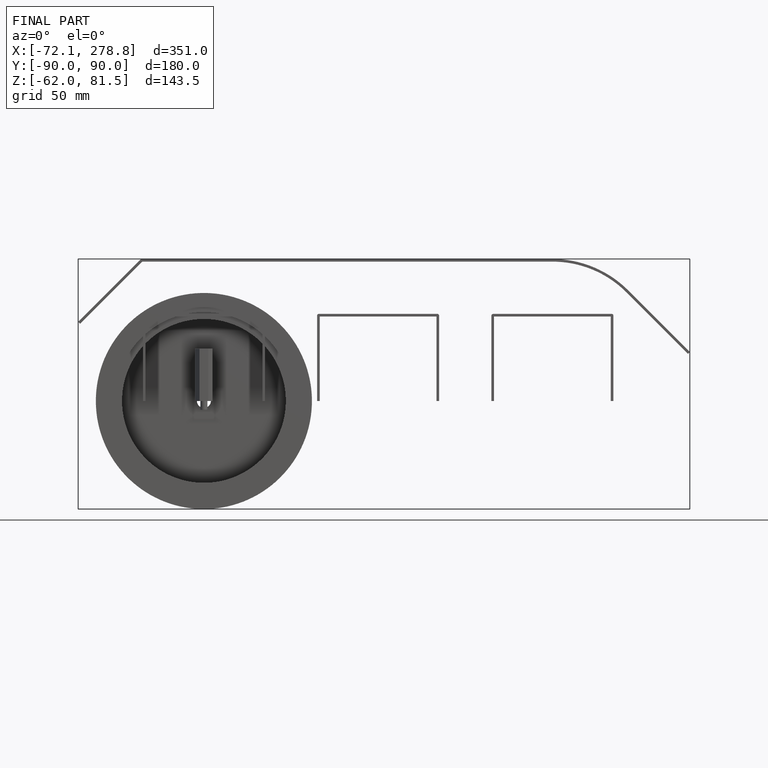
[diagram: finished part — front view with bounding-box wireframe]
